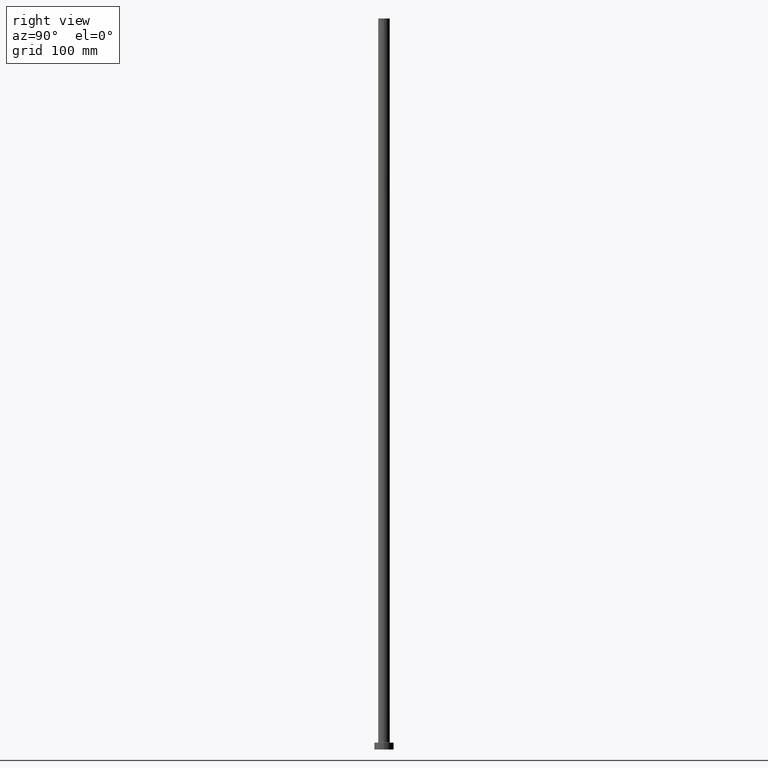
[diagram: clean part render]
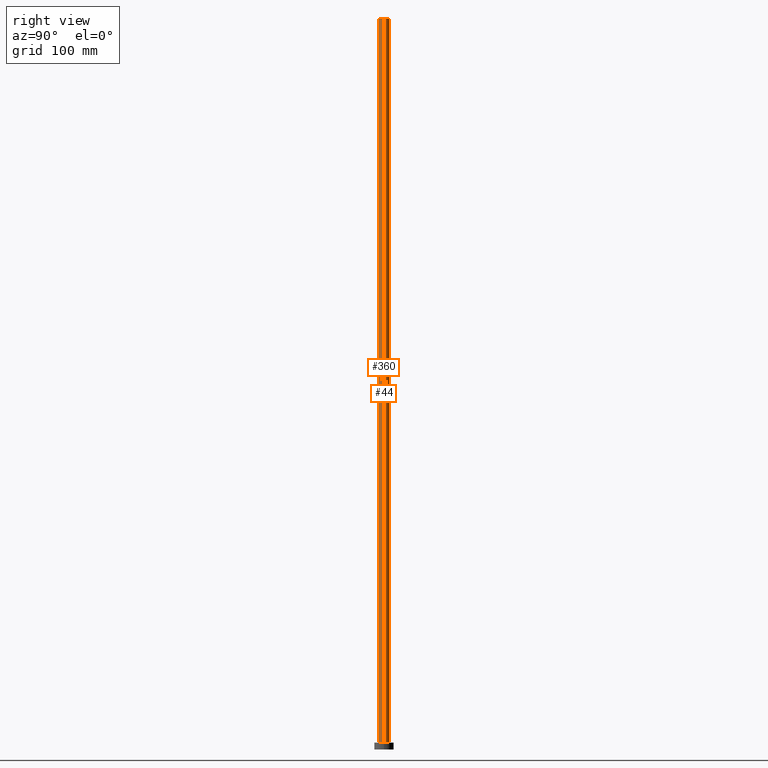
[diagram: same view with one multi-face feature highlighted, each face labeled with its STEP entity id]
A machine part, right view. The highlighted faces form ONE feature: a constant-radius fillet chain: 2 tangent blend faces with common blend radius 6 mm. The faces share edges in the B-rep.
Their STEP definitions:
[1] entity #360 (Cylinder):
#18 = DIRECTION ( 'NONE',  ( -0.000000000000000000, -0.000000000000000000, -1.000000000000000000 ) ) ;
#51 = ORIENTED_EDGE ( 'NONE', *, *, #78, .T. ) ;
#56 = ORIENTED_EDGE ( 'NONE', *, *, #73, .F. ) ;
#63 = AXIS2_PLACEMENT_3D ( 'NONE', #277, #350, #97 ) ;
#67 = EDGE_CURVE ( 'NONE', #456, #299, #148, .T. ) ;
#70 = DIRECTION ( 'NONE',  ( 0.000000000000000000, 0.000000000000000000, 1.000000000000000000 ) ) ;
#73 = EDGE_CURVE ( 'NONE', #299, #140, #206, .T. ) ;
#78 = EDGE_CURVE ( 'NONE', #118, #140, #182, .T. ) ;
#89 = DIRECTION ( 'NONE',  ( -0.000000000000000000, -0.000000000000000000, -1.000000000000000000 ) ) ;
#94 = EDGE_CURVE ( 'NONE', #456, #118, #241, .T. ) ;
#97 = DIRECTION ( 'NONE',  ( 1.000000000000000000, 0.000000000000000000, 0.000000000000000000 ) ) ;
#115 = ORIENTED_EDGE ( 'NONE', *, *, #94, .T. ) ;
#118 = VERTEX_POINT ( 'NONE', #458 ) ;
#133 = CYLINDRICAL_SURFACE ( 'NONE', #229, 6.000000000000000888 ) ;
#140 = VERTEX_POINT ( 'NONE', #176 ) ;
#146 = DIRECTION ( 'NONE',  ( -0.000000000000000000, -0.000000000000000000, -1.000000000000000000 ) ) ;
#148 = CIRCLE ( 'NONE', #264, 6.000000000000000888 ) ;
#176 = CARTESIAN_POINT ( 'NONE',  ( 6.000000000000000888, 7.347880794884119736E-16, 7.499999999999951150 ) ) ;
#182 = CIRCLE ( 'NONE', #63, 6.000000000000000888 ) ;
#206 = LINE ( 'NONE', #341, #371 ) ;
#229 = AXIS2_PLACEMENT_3D ( 'NONE', #380, #89, #375 ) ;
#240 = DIRECTION ( 'NONE',  ( 1.000000000000000000, 0.000000000000000000, 0.000000000000000000 ) ) ;
#241 = LINE ( 'NONE', #346, #300 ) ;
#264 = AXIS2_PLACEMENT_3D ( 'NONE', #451, #70, #240 ) ;
#268 = CARTESIAN_POINT ( 'NONE',  ( 6.000000000000000888, 7.347880794884119736E-16, 750.0000000000000000 ) ) ;
#277 = CARTESIAN_POINT ( 'NONE',  ( 0.000000000000000000, 0.000000000000000000, 7.499999999999951150 ) ) ;
#299 = VERTEX_POINT ( 'NONE', #268 ) ;
#300 = VECTOR ( 'NONE', #146, 1000.000000000000000 ) ;
#333 = EDGE_LOOP ( 'NONE', ( #56, #370, #115, #51 ) ) ;
#338 = CARTESIAN_POINT ( 'NONE',  ( -6.000000000000000888, 0.000000000000000000, 750.0000000000000000 ) ) ;
#341 = CARTESIAN_POINT ( 'NONE',  ( 6.000000000000000888, 7.347880794884119736E-16, 750.0000000000000000 ) ) ;
#346 = CARTESIAN_POINT ( 'NONE',  ( -6.000000000000000888, 0.000000000000000000, 750.0000000000000000 ) ) ;
#350 = DIRECTION ( 'NONE',  ( 0.000000000000000000, 0.000000000000000000, 1.000000000000000000 ) ) ;
#360 = ADVANCED_FACE ( 'NONE', ( #373 ), #133, .T. ) ;
#370 = ORIENTED_EDGE ( 'NONE', *, *, #67, .F. ) ;
#371 = VECTOR ( 'NONE', #18, 1000.000000000000000 ) ;
#373 = FACE_OUTER_BOUND ( 'NONE', #333, .T. ) ;
#375 = DIRECTION ( 'NONE',  ( -1.000000000000000000, 0.000000000000000000, 0.000000000000000000 ) ) ;
#380 = CARTESIAN_POINT ( 'NONE',  ( 0.000000000000000000, 0.000000000000000000, 750.0000000000000000 ) ) ;
#451 = CARTESIAN_POINT ( 'NONE',  ( 0.000000000000000000, 0.000000000000000000, 750.0000000000000000 ) ) ;
#456 = VERTEX_POINT ( 'NONE', #338 ) ;
#458 = CARTESIAN_POINT ( 'NONE',  ( -6.000000000000000888, 0.000000000000000000, 7.499999999999951150 ) ) ;
[2] entity #44 (Cylinder):
#14 = EDGE_LOOP ( 'NONE', ( #83, #417, #273, #230 ) ) ;
#18 = DIRECTION ( 'NONE',  ( -0.000000000000000000, -0.000000000000000000, -1.000000000000000000 ) ) ;
#31 = CARTESIAN_POINT ( 'NONE',  ( 0.000000000000000000, 0.000000000000000000, 7.499999999999951150 ) ) ;
#44 = ADVANCED_FACE ( 'NONE', ( #167 ), #179, .T. ) ;
#73 = EDGE_CURVE ( 'NONE', #299, #140, #206, .T. ) ;
#74 = DIRECTION ( 'NONE',  ( 0.000000000000000000, 0.000000000000000000, 1.000000000000000000 ) ) ;
#81 = AXIS2_PLACEMENT_3D ( 'NONE', #31, #186, #319 ) ;
#83 = ORIENTED_EDGE ( 'NONE', *, *, #205, .F. ) ;
#94 = EDGE_CURVE ( 'NONE', #456, #118, #241, .T. ) ;
#106 = CARTESIAN_POINT ( 'NONE',  ( 0.000000000000000000, 0.000000000000000000, 750.0000000000000000 ) ) ;
#116 = EDGE_CURVE ( 'NONE', #140, #118, #281, .T. ) ;
#118 = VERTEX_POINT ( 'NONE', #458 ) ;
#137 = DIRECTION ( 'NONE',  ( -1.000000000000000000, 0.000000000000000000, 0.000000000000000000 ) ) ;
#140 = VERTEX_POINT ( 'NONE', #176 ) ;
#146 = DIRECTION ( 'NONE',  ( -0.000000000000000000, -0.000000000000000000, -1.000000000000000000 ) ) ;
#167 = FACE_OUTER_BOUND ( 'NONE', #14, .T. ) ;
#176 = CARTESIAN_POINT ( 'NONE',  ( 6.000000000000000888, 7.347880794884119736E-16, 7.499999999999951150 ) ) ;
#177 = DIRECTION ( 'NONE',  ( -0.000000000000000000, -0.000000000000000000, -1.000000000000000000 ) ) ;
#179 = CYLINDRICAL_SURFACE ( 'NONE', #363, 6.000000000000000888 ) ;
#186 = DIRECTION ( 'NONE',  ( 0.000000000000000000, 0.000000000000000000, 1.000000000000000000 ) ) ;
#205 = EDGE_CURVE ( 'NONE', #299, #456, #353, .T. ) ;
#206 = LINE ( 'NONE', #341, #371 ) ;
#230 = ORIENTED_EDGE ( 'NONE', *, *, #94, .F. ) ;
#241 = LINE ( 'NONE', #346, #300 ) ;
#268 = CARTESIAN_POINT ( 'NONE',  ( 6.000000000000000888, 7.347880794884119736E-16, 750.0000000000000000 ) ) ;
#273 = ORIENTED_EDGE ( 'NONE', *, *, #116, .T. ) ;
#281 = CIRCLE ( 'NONE', #81, 6.000000000000000888 ) ;
#299 = VERTEX_POINT ( 'NONE', #268 ) ;
#300 = VECTOR ( 'NONE', #146, 1000.000000000000000 ) ;
#305 = CARTESIAN_POINT ( 'NONE',  ( 0.000000000000000000, 0.000000000000000000, 750.0000000000000000 ) ) ;
#319 = DIRECTION ( 'NONE',  ( 1.000000000000000000, 0.000000000000000000, 0.000000000000000000 ) ) ;
#338 = CARTESIAN_POINT ( 'NONE',  ( -6.000000000000000888, 0.000000000000000000, 750.0000000000000000 ) ) ;
#341 = CARTESIAN_POINT ( 'NONE',  ( 6.000000000000000888, 7.347880794884119736E-16, 750.0000000000000000 ) ) ;
#346 = CARTESIAN_POINT ( 'NONE',  ( -6.000000000000000888, 0.000000000000000000, 750.0000000000000000 ) ) ;
#353 = CIRCLE ( 'NONE', #411, 6.000000000000000888 ) ;
#363 = AXIS2_PLACEMENT_3D ( 'NONE', #305, #177, #137 ) ;
#371 = VECTOR ( 'NONE', #18, 1000.000000000000000 ) ;
#411 = AXIS2_PLACEMENT_3D ( 'NONE', #106, #74, #426 ) ;
#417 = ORIENTED_EDGE ( 'NONE', *, *, #73, .T. ) ;
#426 = DIRECTION ( 'NONE',  ( 1.000000000000000000, 0.000000000000000000, 0.000000000000000000 ) ) ;
#456 = VERTEX_POINT ( 'NONE', #338 ) ;
#458 = CARTESIAN_POINT ( 'NONE',  ( -6.000000000000000888, 0.000000000000000000, 7.499999999999951150 ) ) ;